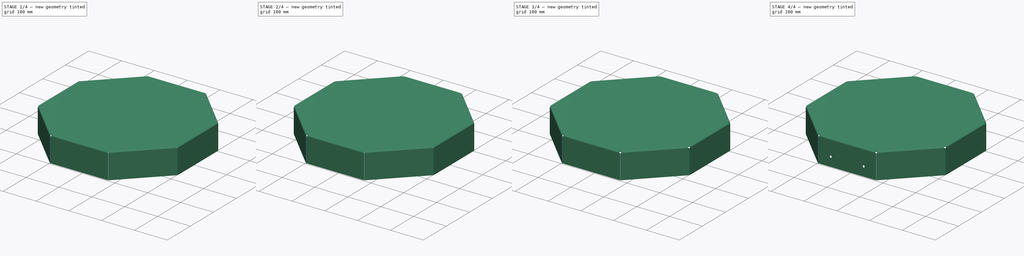
[diagram: build sequence overview — one tinted view per stage of 4, left to right]
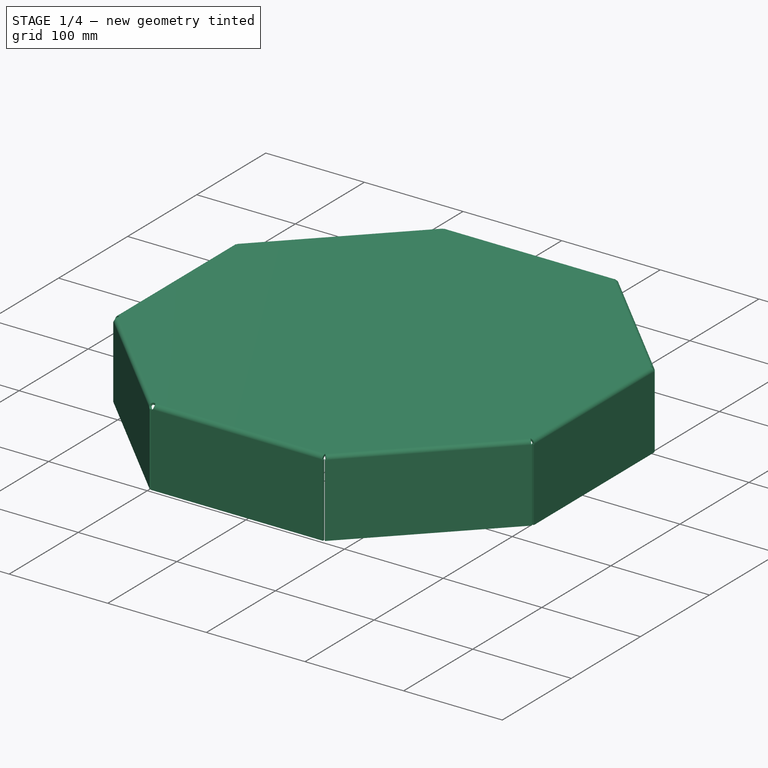
[diagram: stage 1 of 4 — iso view after this stage's code; geometry added in this stage tinted green]
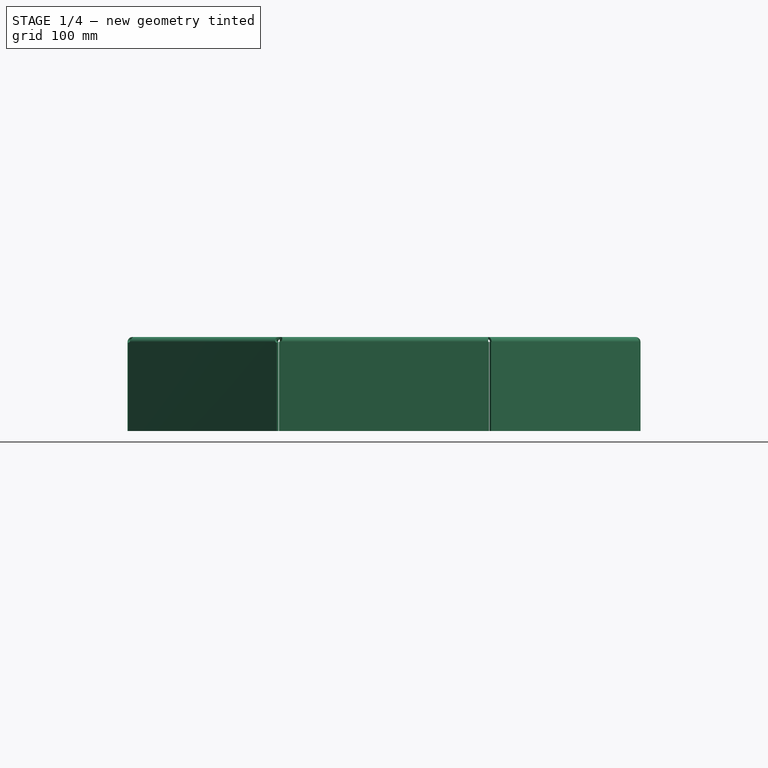
[diagram: stage 1 of 4 — front view after this stage's code; geometry added in this stage tinted green]
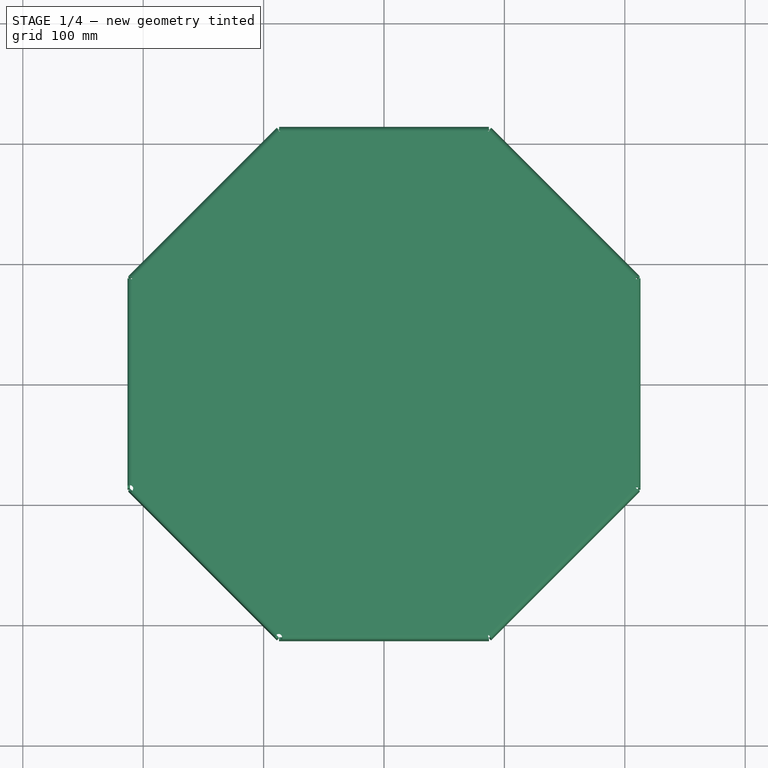
[diagram: stage 1 of 4 — top view after this stage's code; geometry added in this stage tinted green]
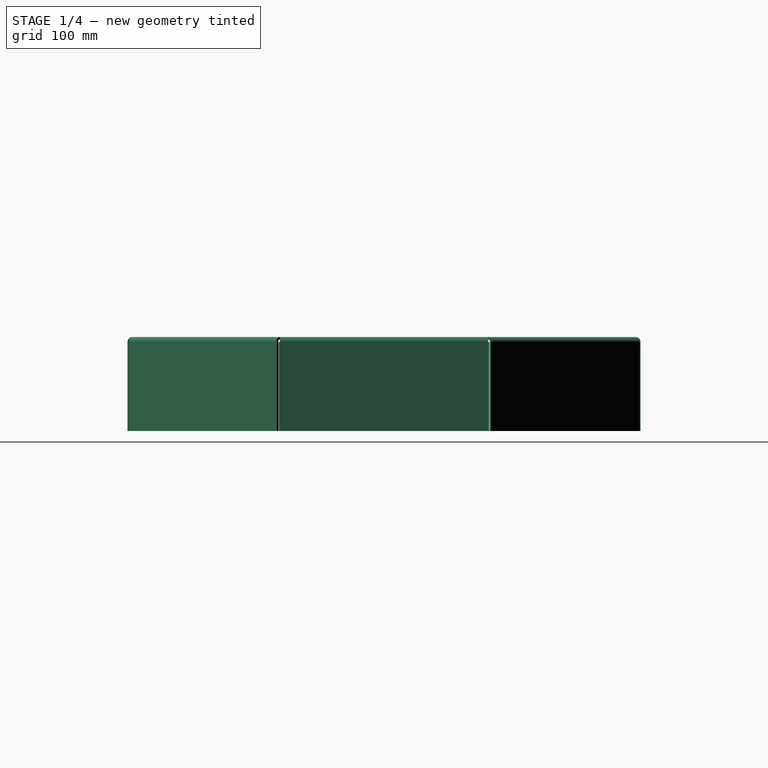
[diagram: stage 1 of 4 — right view after this stage's code; geometry added in this stage tinted green]
FCSTD DOCUMENT  (FreeCAD 1.0R39319 (Git))
Label: OCT-LIDFR-AA
License: Creative Commons Attribution 4.0
LicenseURL: https://creativecommons.org/licenses/by/4.0/
objects: PartDesign::FeaturePython×10, Sketcher::SketchObject×4, PartDesign::Plane×2, PartDesign::Pocket×2, App::Link×1, Spreadsheet::Sheet×1, PartDesign::Hole×1, PartDesign::Chamfer×1, PartDesign::Body×1
note: 43 computed .brp shape members not serialized (recipe doc carries the construction recipe); baked Part::Feature solids carry a one-line shape summary decoded from their .brp
EXTERNAL_REF file=../../master.FCStd obj=Spreadsheet

FEATURE [App::Link] Link  label="dims"
  LinkedObject = -> <external ../../master.FCStd>#Spreadsheet
FEATURE [Sketcher::SketchObject] Sketch
  ArcFitTolerance = 1e-06
  AttachmentSupport = -> [XY_Plane]
  FullyConstrained = true
  MakeInternals = false
  MapMode = 5
  expr: Constraints[25] = <<dims>>.iwFurnace - 2 * <<local>>.LidBendRadius
  sketch-geometry (9):
    g0: LineSegment StartX=-86.5706 StartY=209 StartZ=0 EndX=-209 EndY=86.5706 EndZ=0
    g1: LineSegment StartX=-209 StartY=86.5706 StartZ=0 EndX=-209 EndY=-86.5706 EndZ=0
    g2: LineSegment StartX=-209 StartY=-86.5706 StartZ=0 EndX=-86.5706 EndY=-209 EndZ=0
    g3: LineSegment StartX=-86.5706 StartY=-209 StartZ=0 EndX=86.5706 EndY=-209 EndZ=0
    g4: LineSegment StartX=86.5706 StartY=-209 StartZ=0 EndX=209 EndY=-86.5706 EndZ=0
    g5: LineSegment StartX=209 StartY=-86.5706 StartZ=0 EndX=209 EndY=86.5706 EndZ=0
    g6: LineSegment StartX=209 StartY=86.5706 StartZ=0 EndX=86.5706 EndY=209 EndZ=0
    g7: LineSegment StartX=86.5706 StartY=209 StartZ=0 EndX=-86.5706 EndY=209 EndZ=0
    g8: Circle [constr] CenterX=0 CenterY=0 CenterZ=0 NormalX=0 NormalY=0 NormalZ=1 AngleXU=0 Radius=226.22
  constraints (20):
    c: Coincident(g0,g1)
    c: Coincident(g1,g2)
    c: Coincident(g2,g3)
    c: Coincident(g3,g4)
    c: Coincident(g4,g5)
    c: Coincident(g5,g6)
    c: Coincident(g6,g7)
    c: Coincident(g7,g0)
    c: Equal(g0, g1-g7) x7
    c: PointOnObject(g0,g8)
    c: PointOnObject(g1,g8)
    c: PointOnObject(g2,g8)
    c: PointOnObject(g3,g8)
    c: PointOnObject(g4,g8)
    c: PointOnObject(g5,g8)
    c: PointOnObject(g6,g8)
    c: PointOnObject(g7,g8)
    c: Coincident(g8,g-1)
    c: Horizontal(g7)
    c: DistanceY(g2,g0) = 418
FEATURE [PartDesign::FeaturePython] BaseBend  # WARN: FeaturePython — macro-defined, semantics opaque (R4)
  BendSide = 0
  BendSketch = -> Sketch
  Length = 100
  MidPlane = false
  Radius = 1
  Reverse = true
  Suppressed = false
  Thickness = 2
  length = 100
  radius = 1
  thickness = 2
  expr: thickness = <<local>>.LidThickness
FEATURE [PartDesign::FeaturePython] Bend  # WARN: FeaturePython — macro-defined, semantics opaque (R4)
  AutoMiter = true
  BaseFeature = -> BaseBend
  BendType = 0
  LengthList = [74]
  LengthSpec = 0
  NonperforationMaxLength = 5
  Perforate = false
  PerforationAngle = 0
  PerforationInitialLength = 5
  PerforationMaxLength = 5
  ReliefFactor = 0.7
  Suppressed = false
  UseReliefFactor = false
  angle = 90
  baseObject = -> BaseBend [Face4,Face5,Face6,Face7,Face8,Face1,Face2,Face3]
  bendAList = [90]
  extend1 = 0
  extend2 = 0
  gap1 = 0
  gap2 = 0
  invert = false
  kfactor = 0.45
  length = 74
  maxExtendDist = 5
  minGap = 0.2
  minReliefGap = 1
  miterangle1 = 0
  miterangle2 = 0
  offset = 0
  radius = 2
  reliefType = 0
  reliefd = 1
  reliefw = 0.8
  sketchflip = false
  sketchinvert = false
  unfold = false
  expr: length = 76 - <<local>>.LidBendRadius
  expr: radius = <<local>>.LidBendRadius
FEATURE [Spreadsheet::Sheet] Spreadsheet  label="local"
  cells = A1='lid thickness; B1(LidThickness)=2; A2='lid bend radius; B2(LidBendRadius)==B1
FEATURE [PartDesign::Plane] DatumPlane  label="front plane"
  AttachmentSupport = -> [Bend]
  Length = 60
  MapMode = 5
  Placement = pos=(0,-213,0) rot=(1,0,0;1.5708rad)
  ResizeMode = 0
  Width = 60
FEATURE [PartDesign::FeaturePython] CornerRelief  # WARN: FeaturePython — macro-defined, semantics opaque (R4)
  BaseFeature = -> Bend
  ReliefSketch = 0
  Size = 3
  SizeRatio = 1.5
  Suppressed = false
  XOffset = 0
  YOffset = 0
  baseObject = -> Bend [Edge33,Edge32]
  kfactor = 0.45
  expr: kfactor = 0.45
FEATURE [PartDesign::FeaturePython] CornerRelief001  # WARN: FeaturePython — macro-defined, semantics opaque (R4)
  BaseFeature = -> CornerRelief
  ReliefSketch = 0
  Size = 3
  SizeRatio = 1.5
  Suppressed = false
  XOffset = 0
  YOffset = 0
  baseObject = -> CornerRelief [Edge36,Edge37]
  kfactor = 0.45
  expr: kfactor = 0.45
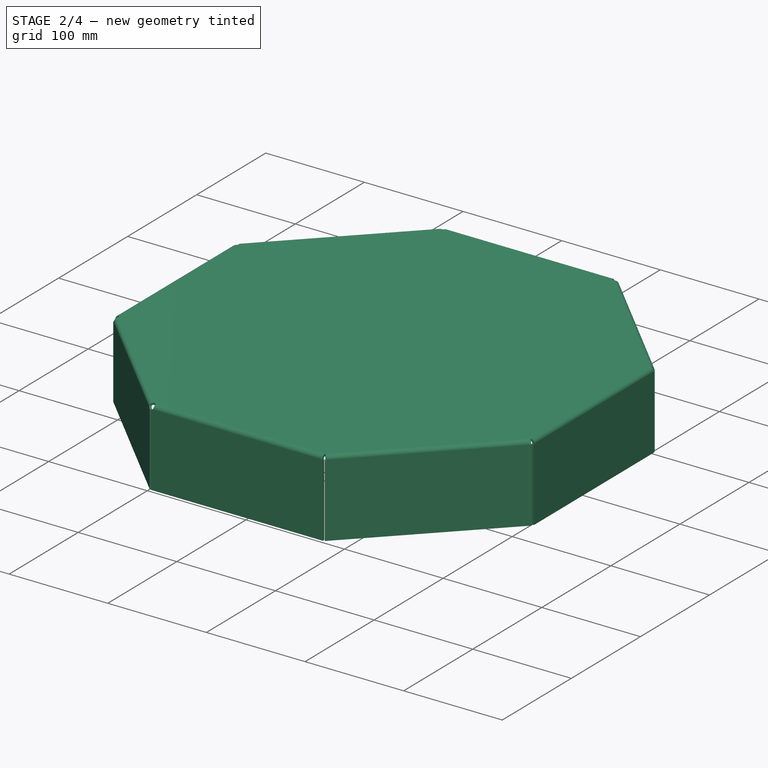
[diagram: stage 2 of 4 — iso view after this stage's code; geometry added in this stage tinted green]
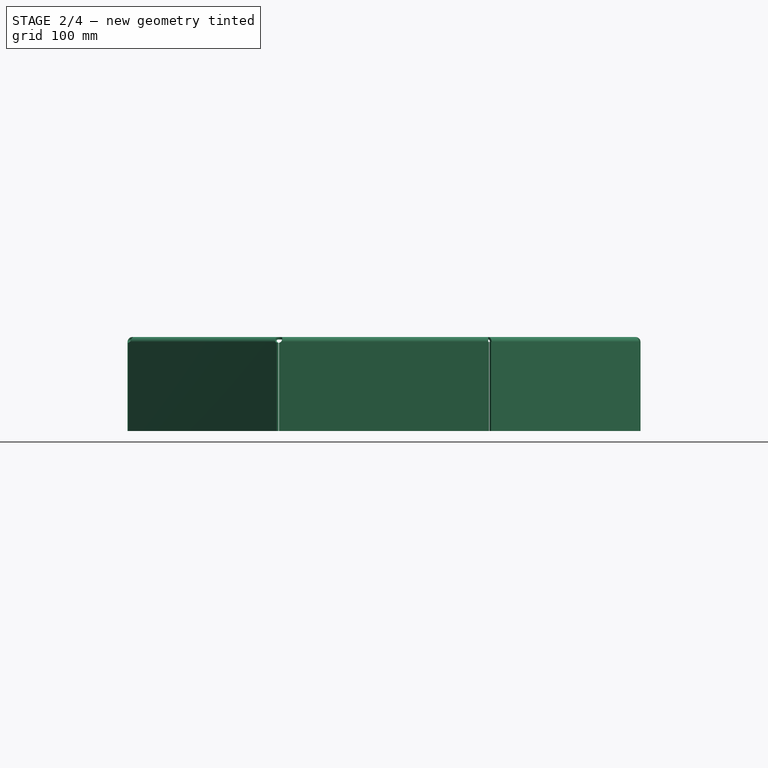
[diagram: stage 2 of 4 — front view after this stage's code; geometry added in this stage tinted green]
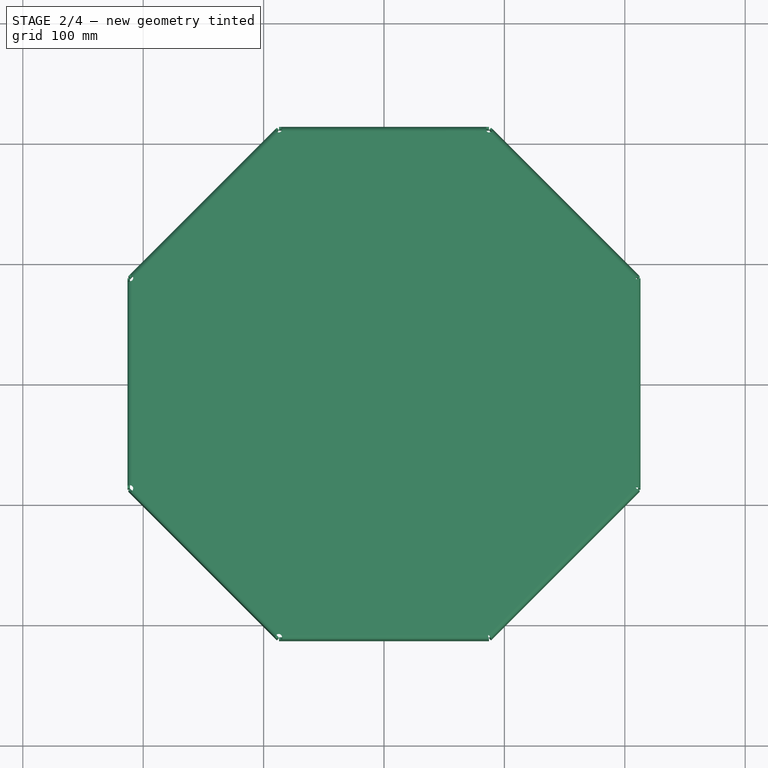
[diagram: stage 2 of 4 — top view after this stage's code; geometry added in this stage tinted green]
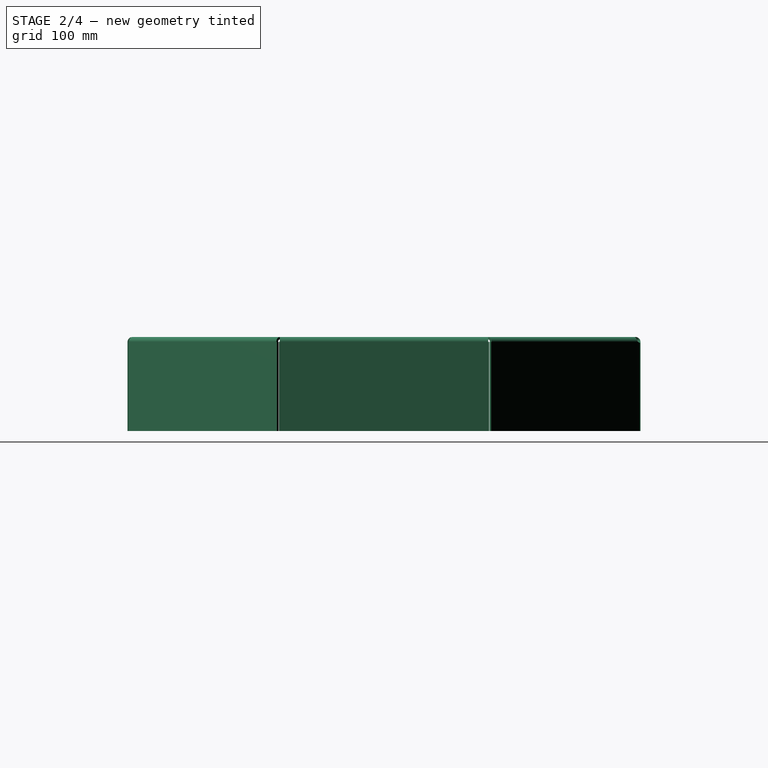
[diagram: stage 2 of 4 — right view after this stage's code; geometry added in this stage tinted green]
FEATURE [PartDesign::FeaturePython] CornerRelief002  # WARN: FeaturePython — macro-defined, semantics opaque (R4)
  BaseFeature = -> CornerRelief001
  ReliefSketch = 0
  Size = 3
  SizeRatio = 1.5
  Suppressed = false
  XOffset = 0
  YOffset = 0
  baseObject = -> CornerRelief001 [Edge39,Edge40]
  kfactor = 0.45
FEATURE [PartDesign::FeaturePython] CornerRelief003  # WARN: FeaturePython — macro-defined, semantics opaque (R4)
  BaseFeature = -> CornerRelief002
  ReliefSketch = 0
  Size = 3
  SizeRatio = 1.5
  Suppressed = false
  XOffset = 0
  YOffset = 0
  baseObject = -> CornerRelief002 [Edge41,Edge9]
  kfactor = 0.45
  expr: kfactor = 0.45
FEATURE [PartDesign::FeaturePython] CornerRelief004  # WARN: FeaturePython — macro-defined, semantics opaque (R4)
  BaseFeature = -> CornerRelief003
  ReliefSketch = 0
  Size = 3
  SizeRatio = 1.5
  Suppressed = false
  XOffset = 0
  YOffset = 0
  baseObject = -> CornerRelief003 [Edge107,Edge65]
  kfactor = 0.45
  expr: kfactor = 0.45
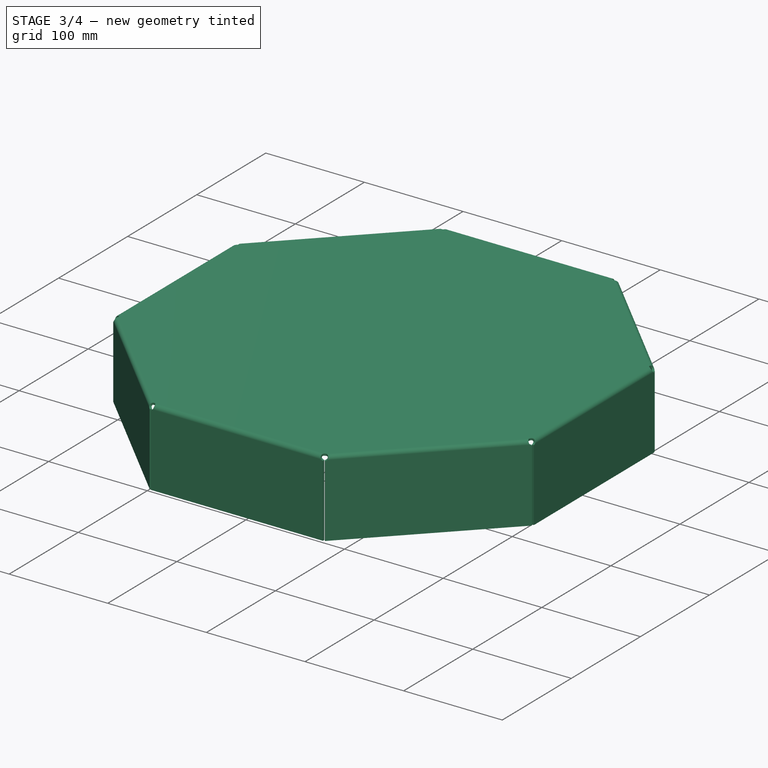
[diagram: stage 3 of 4 — iso view after this stage's code; geometry added in this stage tinted green]
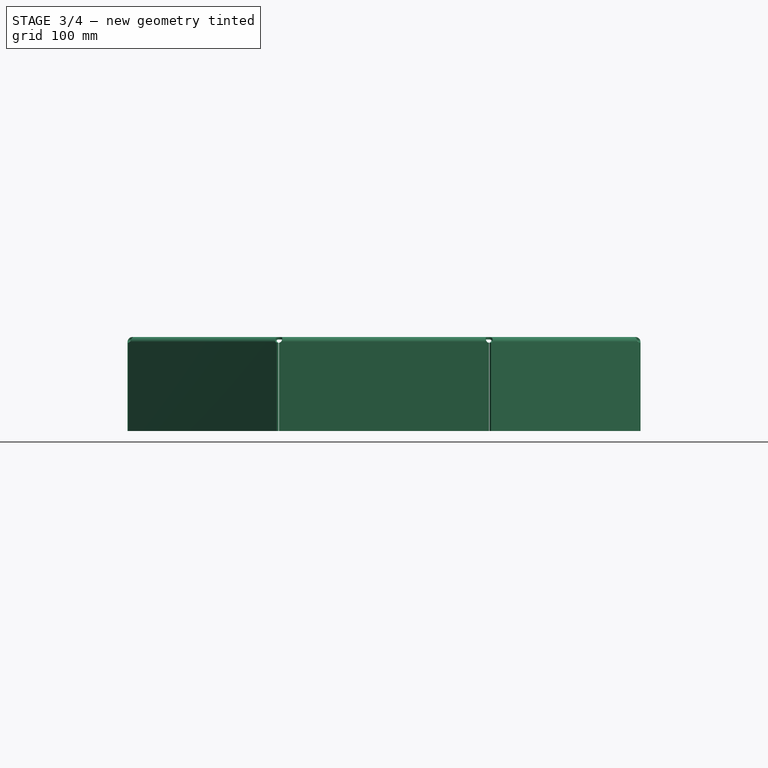
[diagram: stage 3 of 4 — front view after this stage's code; geometry added in this stage tinted green]
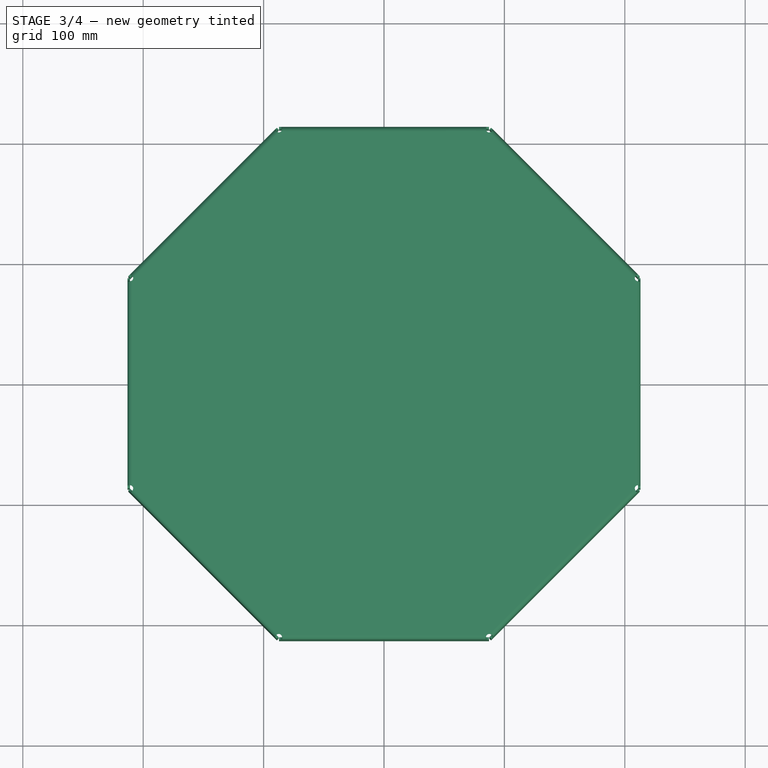
[diagram: stage 3 of 4 — top view after this stage's code; geometry added in this stage tinted green]
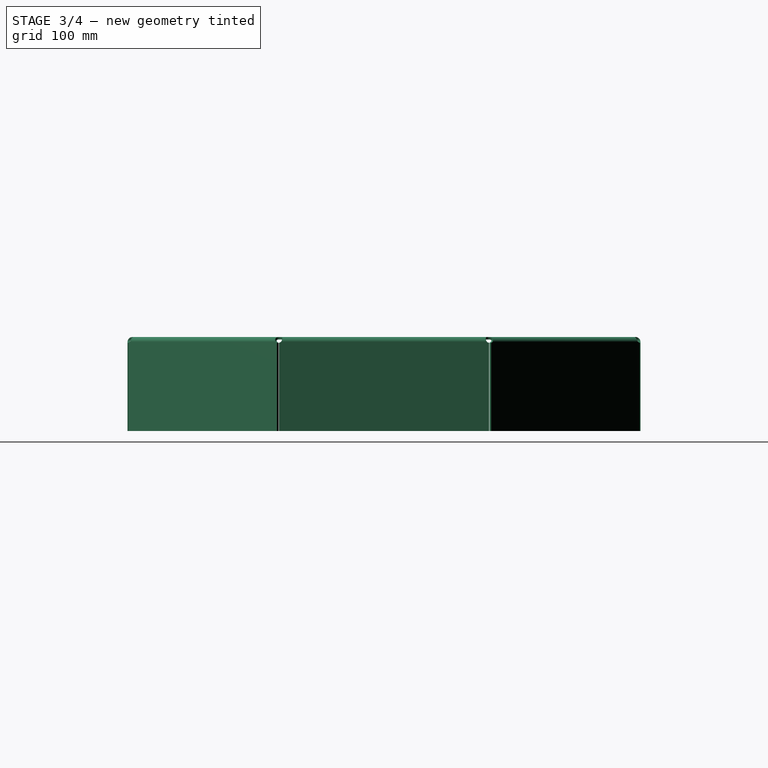
[diagram: stage 3 of 4 — right view after this stage's code; geometry added in this stage tinted green]
FEATURE [PartDesign::FeaturePython] CornerRelief005  # WARN: FeaturePython — macro-defined, semantics opaque (R4)
  BaseFeature = -> CornerRelief004
  ReliefSketch = 0
  Size = 3
  SizeRatio = 1.5
  Suppressed = false
  XOffset = 0
  YOffset = 0
  baseObject = -> CornerRelief004 [Edge99,Edge98]
  kfactor = 0.45
  expr: kfactor = 0.45
FEATURE [PartDesign::FeaturePython] CornerRelief006  # WARN: FeaturePython — macro-defined, semantics opaque (R4)
  BaseFeature = -> CornerRelief005
  ReliefSketch = 0
  Size = 3
  SizeRatio = 1.5
  Suppressed = false
  XOffset = 0
  YOffset = 0
  baseObject = -> CornerRelief005 [Edge92,Edge93]
  kfactor = 0.45
  expr: kfactor = 0.45
FEATURE [PartDesign::FeaturePython] CornerRelief007  # WARN: FeaturePython — macro-defined, semantics opaque (R4)
  BaseFeature = -> CornerRelief006
  ReliefSketch = 0
  Size = 3
  SizeRatio = 1.5
  Suppressed = false
  XOffset = 0
  YOffset = 0
  baseObject = -> CornerRelief006 [Edge97,Edge98]
  kfactor = 0.45
  expr: kfactor = 0.45
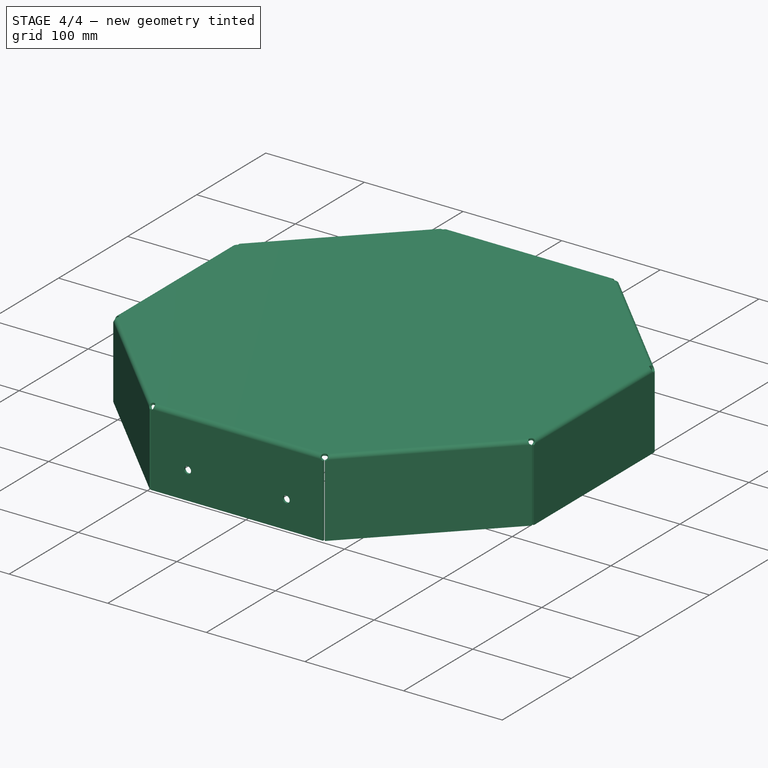
[diagram: stage 4 of 4 — iso view after this stage's code; geometry added in this stage tinted green]
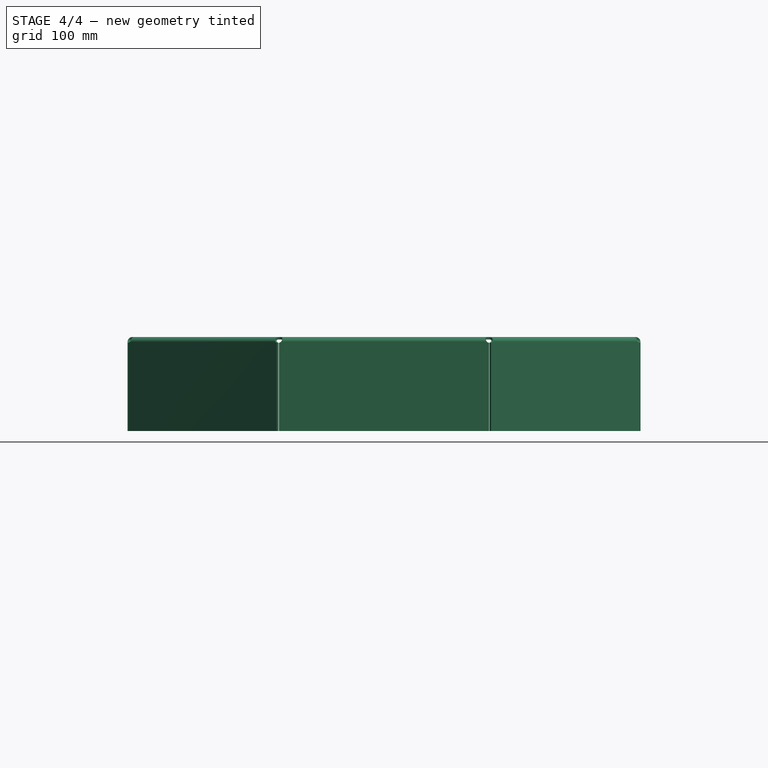
[diagram: stage 4 of 4 — front view after this stage's code; geometry added in this stage tinted green]
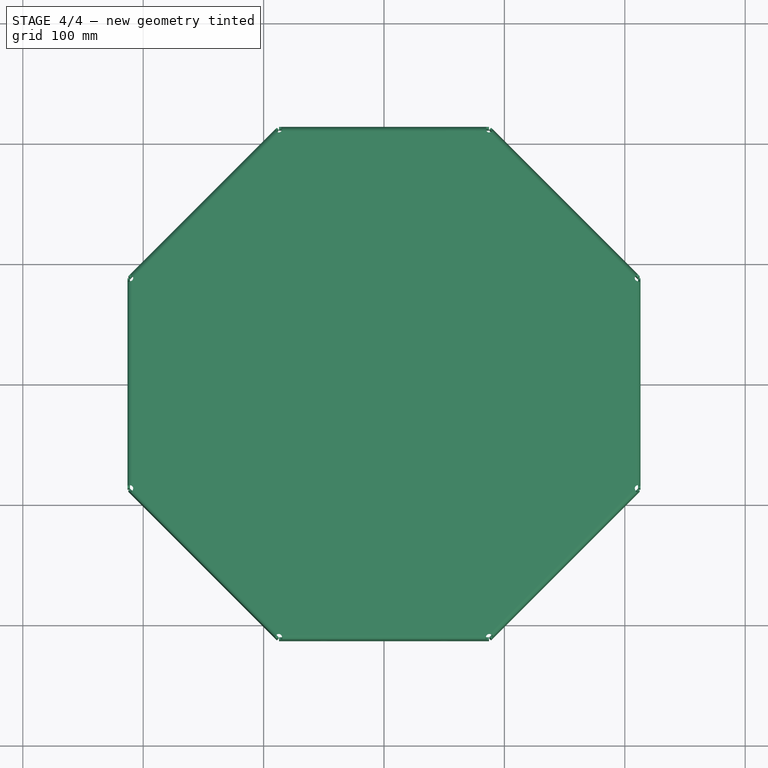
[diagram: stage 4 of 4 — top view after this stage's code; geometry added in this stage tinted green]
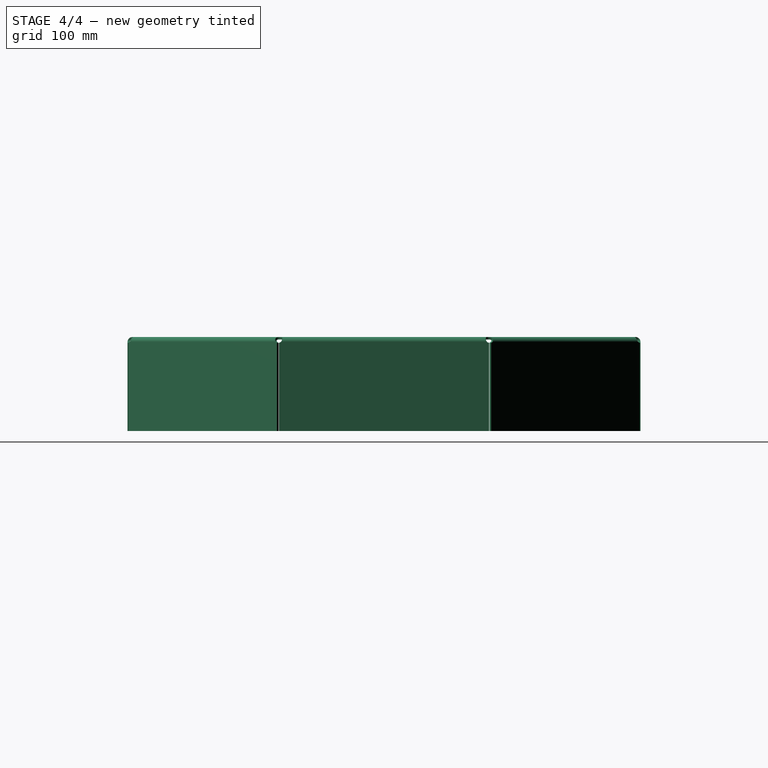
[diagram: stage 4 of 4 — right view after this stage's code; geometry added in this stage tinted green]
FEATURE [Sketcher::SketchObject] Sketch001
  ArcFitTolerance = 1e-06
  AttachmentSupport = -> [DatumPlane]
  FullyConstrained = true
  MakeInternals = false
  MapMode = 5
  Placement = pos=(0,-213,0) rot=(1,0,0;1.5708rad)
  sketch-geometry (2):
    g0: Circle CenterX=-50 CenterY=-50 CenterZ=0 NormalX=0 NormalY=0 NormalZ=1 AngleXU=0 Radius=3
    g1: Circle CenterX=50 CenterY=-50 CenterZ=0 NormalX=0 NormalY=0 NormalZ=1 AngleXU=0 Radius=3
  constraints (5):
    c: Symmetric(g0,g1,g-2)
    c: Equal(g0,g1)
    c: Diameter(g0) = 6
    c: DistanceX(g0,g1) = 100
    c: Distance(g0,g-1) = 50
FEATURE [PartDesign::Hole] Hole  label="handle holes"
  BaseFeature = -> CornerRelief007
  CustomThreadClearance = 0
  Depth = 2
  DepthType = 0
  Diameter = 7
  DrillForDepth = false
  DrillPoint = 1
  DrillPointAngle = 118
  HoleCutCountersinkAngle = 90
  HoleCutCustomValues = false
  HoleCutDepth = 0
  HoleCutDiameter = 6.1
  HoleCutType = 0
  ModelThread = false
  Profile = -> Sketch001
  Suppressed = false
  Tapered = false
  TaperedAngle = 90
  ThreadClass = 0
  ThreadDepth = 2
  ThreadDepthType = 0
  ThreadDirection = 0
  ThreadFit = 2
  ThreadSize = 14
  ThreadType = 1
  Threaded = false
  UseCustomThreadClearance = false
  expr: Depth = <<local>>.LidThickness
FEATURE [PartDesign::Plane] DatumPlane001  label="rear plane"
  AttachmentSupport = -> [Bend]
  Length = 60
  MapMode = 5
  Placement = pos=(0,213,0) rot=(0,0.707107,0.707107;3.14159rad)
  ResizeMode = 0
  Width = 60
FEATURE [Sketcher::SketchObject] Sketch002
  ArcFitTolerance = 1e-06
  AttachmentSupport = -> [DatumPlane001]
  FullyConstrained = true
  MakeInternals = false
  MapMode = 5
  Placement = pos=(0,213,0) rot=(0,0.707107,0.707107;3.14159rad)
  expr: Constraints[9] = 76 + <<local>>.LidThickness
  sketch-geometry (5):
    g0: LineSegment StartX=55 StartY=-78 StartZ=0 EndX=55 EndY=-64 EndZ=0
    g1: LineSegment StartX=55 StartY=-64 StartZ=0 EndX=-55 EndY=-64 EndZ=0
    g2: LineSegment StartX=-55 StartY=-64 StartZ=0 EndX=-55 EndY=-78 EndZ=0
    g3: LineSegment StartX=-55 StartY=-78 StartZ=0 EndX=55 EndY=-78 EndZ=0
    g4: GeomPoint [constr] X=0 Y=-71 Z=0
  constraints (13):
    c: Coincident(g0,g1)
    c: Coincident(g1,g2)
    c: Coincident(g2,g3)
    c: Coincident(g3,g0)
    c: Vertical(g0)
    c: Vertical(g2)
    c: Horizontal(g1)
    c: Horizontal(g3)
    c: Symmetric(g2,g0,g4)
    c: DistanceY(g2,g-1) = 78
    c: DistanceX(g3,g3) = 110
    c: DistanceY(g2,g2) = 14
    c: PointOnObject(g4,g-2)
FEATURE [PartDesign::Pocket] Pocket  label="hinge bump cutout"
  BaseFeature = -> Hole
  Direction = (0,-1,2e-16)
  Length = 5
  Length2 = 5
  Profile = -> Sketch002
  ReferenceAxis = -> Sketch002 [N_Axis]
  Suppressed = false
  Type = 2
FEATURE [PartDesign::Chamfer] Chamfer  label="cutout edge break"
  Angle = 45
  Base = -> Pocket [Edge97,Edge103]
  BaseFeature = -> Pocket
  ChamferType = 0
  FlipDirection = false
  Size = 2
  Size2 = 1
  SupportTransform = false
  Suppressed = false
  UseAllEdges = false
FEATURE [Sketcher::SketchObject] Sketch003
  ArcFitTolerance = 1e-06
  AttachmentSupport = -> [DatumPlane001]
  FullyConstrained = true
  MakeInternals = false
  MapMode = 5
  Placement = pos=(0,213,0) rot=(0,0.707107,0.707107;3.14159rad)
  expr: Constraints[70] = 76 + <<local>>.LidThickness
  sketch-geometry (30):
    g0: Circle [constr] CenterX=-38.1 CenterY=-54 CenterZ=0 NormalX=0 NormalY=0 NormalZ=1 AngleXU=0 Radius=4.5
    g1: Circle [constr] CenterX=-12.7 CenterY=-45.5 CenterZ=0 NormalX=0 NormalY=0 NormalZ=1 AngleXU=0 Radius=4.5
    g2: Circle [constr] CenterX=12.7 CenterY=-45.5 CenterZ=0 NormalX=0 NormalY=0 NormalZ=1 AngleXU=0 Radius=4.5
    g3: Circle [constr] CenterX=38.1 CenterY=-54 CenterZ=0 NormalX=0 NormalY=0 NormalZ=1 AngleXU=0 Radius=4.5
    g4: ArcOfCircle CenterX=-12.7 CenterY=-47.5 CenterZ=0 NormalX=0 NormalY=0 NormalZ=1 AngleXU=0 Radius=4.5 StartAngle=3.14159 EndAngle=6.28319
    g5: ArcOfCircle CenterX=-12.7 CenterY=-43.5 CenterZ=0 NormalX=0 NormalY=0 NormalZ=1 AngleXU=0 Radius=4.5 StartAngle=0 EndAngle=3.14159
    g6: LineSegment StartX=-17.2 StartY=-47.5 StartZ=0 EndX=-17.2 EndY=-43.5 EndZ=0
    g7: LineSegment StartX=-8.2 StartY=-47.5 StartZ=0 EndX=-8.2 EndY=-43.5 EndZ=0
    g8: ArcOfCircle CenterX=12.7 CenterY=-43.5 CenterZ=0 NormalX=0 NormalY=0 NormalZ=1 AngleXU=0 Radius=4.5 StartAngle=0 EndAngle=3.14159
    g9: ArcOfCircle CenterX=12.7 CenterY=-47.5 CenterZ=0 NormalX=0 NormalY=0 NormalZ=1 AngleXU=0 Radius=4.5 StartAngle=3.14159 EndAngle=6.28319
    g10: LineSegment StartX=17.2 StartY=-43.5 StartZ=0 EndX=17.2 EndY=-47.5 EndZ=0
    g11: LineSegment StartX=8.2 StartY=-43.5 StartZ=0 EndX=8.2 EndY=-47.5 EndZ=0
    g12: LineSegment [constr] StartX=-12.7 StartY=-45.5 StartZ=0 EndX=12.7 EndY=-45.5 EndZ=0
    g13: LineSegment [constr] StartX=-53.5 StartY=-67.5 StartZ=0 EndX=53.5 EndY=-67.5 EndZ=0
    g14: LineSegment [constr] StartX=53.5 StartY=-67.5 StartZ=0 EndX=53.5 EndY=-35.5 EndZ=0
    g15: LineSegment [constr] StartX=53.5 StartY=-35.5 StartZ=0 EndX=-53.5 EndY=-35.5 EndZ=0
    g16: LineSegment [constr] StartX=-53.5 StartY=-35.5 StartZ=0 EndX=-53.5 EndY=-67.5 EndZ=0
    g17: GeomPoint [constr] X=0 Y=-51.5 Z=0
    g18: LineSegment [constr] StartX=-53.5 StartY=-67.5 StartZ=0 EndX=-53.5 EndY=-78 EndZ=0
    g19: LineSegment [constr] StartX=-53.5 StartY=-78 StartZ=0 EndX=53.5 EndY=-78 EndZ=0
    g20: LineSegment [constr] StartX=53.5 StartY=-78 StartZ=0 EndX=53.5 EndY=-67.5 EndZ=0
    g21: ArcOfCircle CenterX=-38.1 CenterY=-52 CenterZ=0 NormalX=0 NormalY=0 NormalZ=1 AngleXU=0 Radius=4.5 StartAngle=-9e-16 EndAngle=3.14159
    g22: ArcOfCircle CenterX=-38.1 CenterY=-56 CenterZ=0 NormalX=0 NormalY=0 NormalZ=1 AngleXU=0 Radius=4.5 StartAngle=3.14159 EndAngle=6.28319
    g23: LineSegment StartX=-33.6 StartY=-52 StartZ=0 EndX=-33.6 EndY=-56 EndZ=0
    g24: LineSegment StartX=-42.6 StartY=-52 StartZ=0 EndX=-42.6 EndY=-56 EndZ=0
    g25: ArcOfCircle CenterX=38.1 CenterY=-52 CenterZ=0 NormalX=0 NormalY=0 NormalZ=1 AngleXU=0 Radius=4.5 StartAngle=0 EndAngle=3.14159
    g26: ArcOfCircle CenterX=38.1 CenterY=-56 CenterZ=0 NormalX=0 NormalY=0 NormalZ=1 AngleXU=0 Radius=4.5 StartAngle=3.14159 EndAngle=6.28319
    g27: LineSegment StartX=42.6 StartY=-52 StartZ=0 EndX=42.6 EndY=-56 EndZ=0
    g28: LineSegment StartX=33.6 StartY=-52 StartZ=0 EndX=33.6 EndY=-56 EndZ=0
    g29: LineSegment [constr] StartX=-38.1 StartY=-54 StartZ=0 EndX=38.1 EndY=-54 EndZ=0
  constraints (71):
    c: Symmetric(g0,g3,g-2)
    c: Symmetric(g1,g2,g-2)
    c: Equal(g1,g2)
    c: Equal(g2,g3)
    c: Equal(g3,g0)
    c: DistanceX(g1,g2) = 25.4
    c: DistanceX(g0,g3) = 76.2
    c: Tangent(g4,g6) = 1.5708
    c: Tangent(g4,g7) = -1.5708
    c: Tangent(g5,g6) = 1.5708
    c: Tangent(g5,g7) = -1.5708
    c: Equal(g4,g5)
    c: Tangent(g8,g10) = 1.5708
    c: Tangent(g8,g11) = -1.5708
    c: Tangent(g9,g10) = 1.5708
    c: Tangent(g9,g11) = -1.5708
    c: Equal(g8,g9)
    c: Equal(g11,g7)
    c: Equal(g4,g9)
    c: Equal(g9,g1)
    c: Tangent(g6,g1)
    c: Tangent(g11,g2)
    c: Diameter(g0) = 9
    c: Coincident(g12,g1)
    c: Coincident(g12,g2)
    c: Symmetric(g9,g8,g12)
    c: Symmetric(g5,g4,g12)
    c: DistanceY(g6,g6) = 4
    c: Coincident(g13,g14)
    c: Coincident(g14,g15)
    c: Coincident(g15,g16)
    c: Coincident(g16,g13)
    c: Horizontal(g13)
    c: Horizontal(g15)
    c: Vertical(g14)
    c: Vertical(g16)
    c: Symmetric(g15,g13,g17)
    c: PointOnObject(g17,g-2)
    c: Coincident(g13,g18)
    c: Coincident(g18,g19)
    c: Coincident(g19,g20)
    c: Coincident(g20,g13)
    c: Vertical(g20)
    c: Horizontal(g19)
    c: Vertical(g18)
    c: DistanceY(g18,g18) = 10.5
    c: DistanceY(g16,g16) = 32
    c: DistanceX(g19,g19) = 107
    c: DistanceY(g0,g15) = 18.5
    c: DistanceY(g1,g15) = 10
    c: Tangent(g21,g23) = 1.5708
    c: Tangent(g21,g24) = -1.5708
    c: Tangent(g22,g23) = 1.5708
    c: Tangent(g22,g24) = -1.5708
    c: Equal(g21,g22)
    c: Tangent(g25,g27) = 1.5708
    c: Tangent(g25,g28) = -1.5708
    c: Tangent(g26,g27) = 1.5708
    c: Tangent(g26,g28) = -1.5708
    c: Equal(g25,g26)
    c: Tangent(g23,g0)
    c: Equal(g21,g0)
    c: Coincident(g29,g0)
    c: Coincident(g29,g3)
    c: Symmetric(g21,g22,g29)
    c: Equal(g6,g23)
    c: Tangent(g27,g3)
    c: Equal(g25,g3)
    c: Equal(g6,g28)
    c: Symmetric(g25,g26,g29)
    c: DistanceY(g19,g-1) = 78
FEATURE [PartDesign::Pocket] Pocket001  label="hinge mount holes"
  BaseFeature = -> Chamfer
  Direction = (0,-1,2e-16)
  Length = 5
  Length2 = 5
  Profile = -> Sketch003
  ReferenceAxis = -> Sketch003 [N_Axis]
  Suppressed = false
  Type = 2
FEATURE [PartDesign::Body] Body  label="OCT-LIDFR-AA"
  AllowCompound = false
  Group = -> [Sketch,BaseBend,Bend,DatumPlane,DatumPlane001,CornerRelief,CornerRelief001,CornerRelief002,CornerRelief003,CornerRelief004,CornerRelief005,CornerRelief006,CornerRelief007,Sketch001,Hole,Sketch002,Pocket,Chamfer,Sketch003,Pocket001]
  Origin = -> Origin
  Tip = -> Pocket001
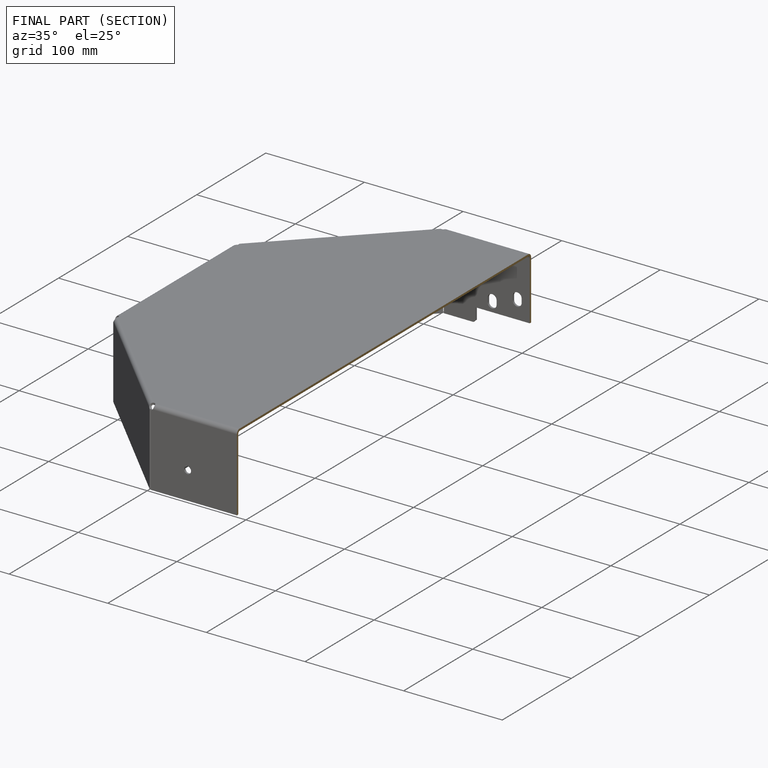
[diagram: finished part — half-section view (interior)]
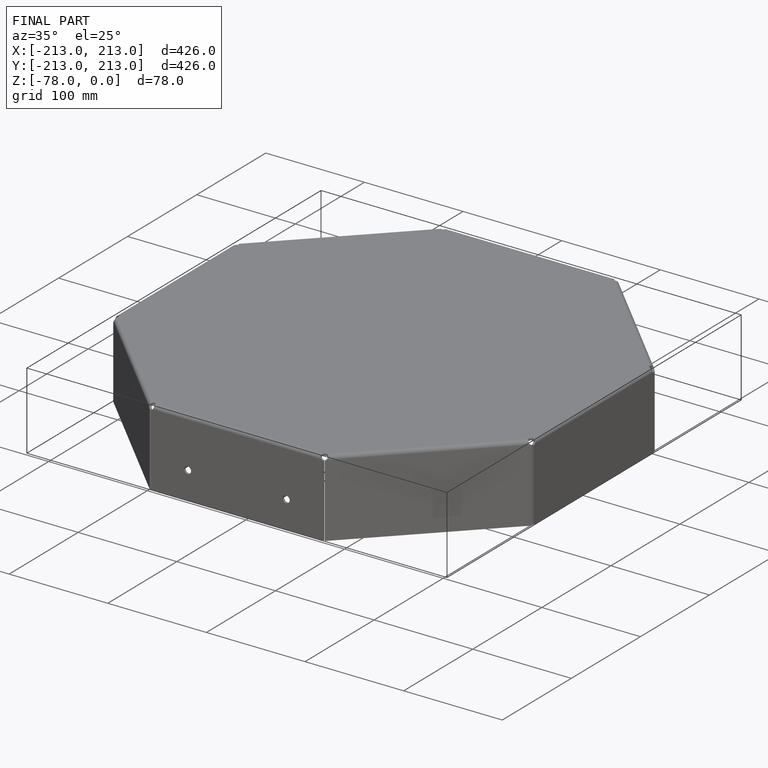
[diagram: finished part — iso view with bounding-box wireframe]
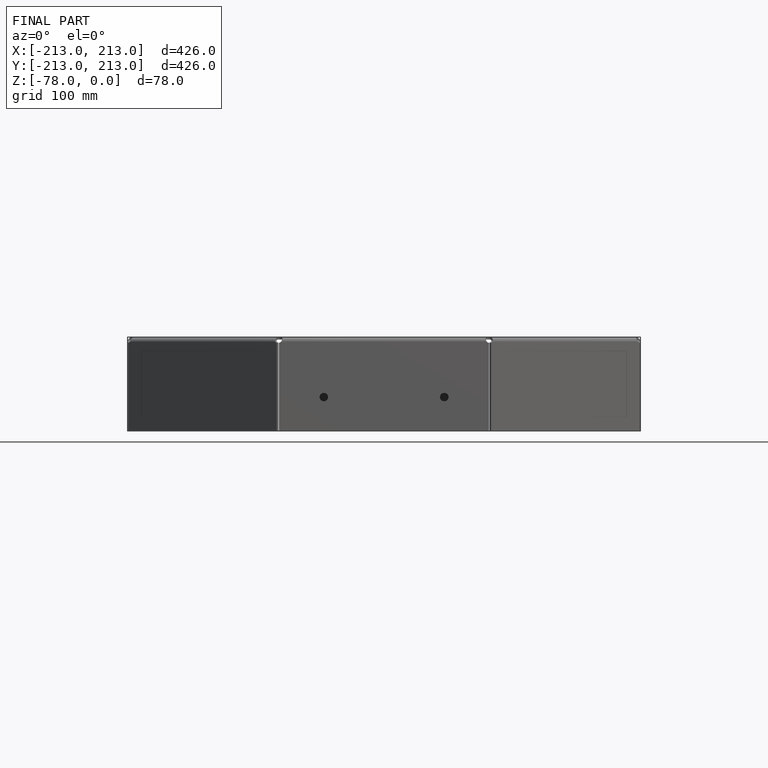
[diagram: finished part — front view with bounding-box wireframe]
